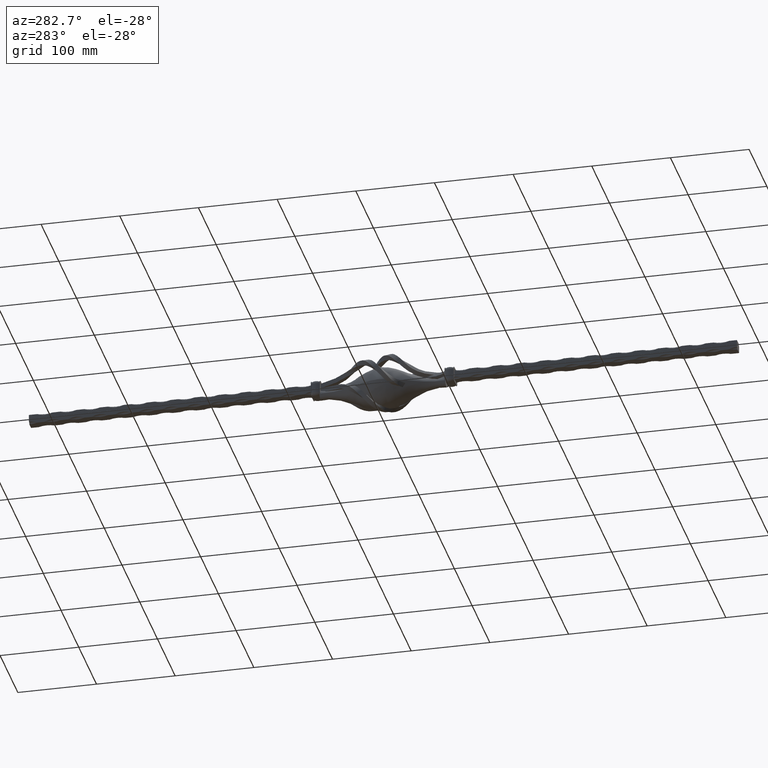
[diagram: clean part render]
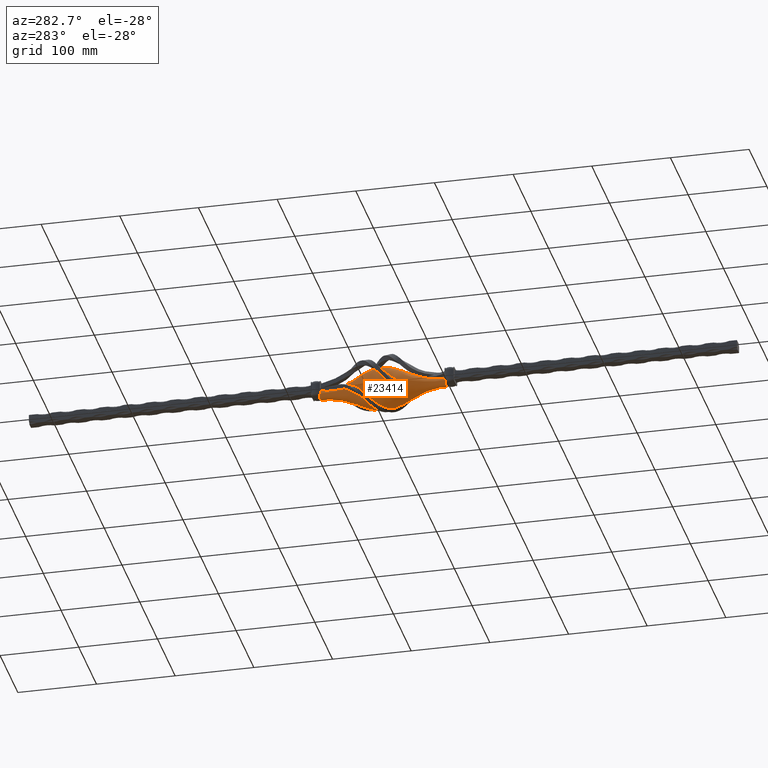
[diagram: same view with one face highlighted and labeled with its STEP entity id]
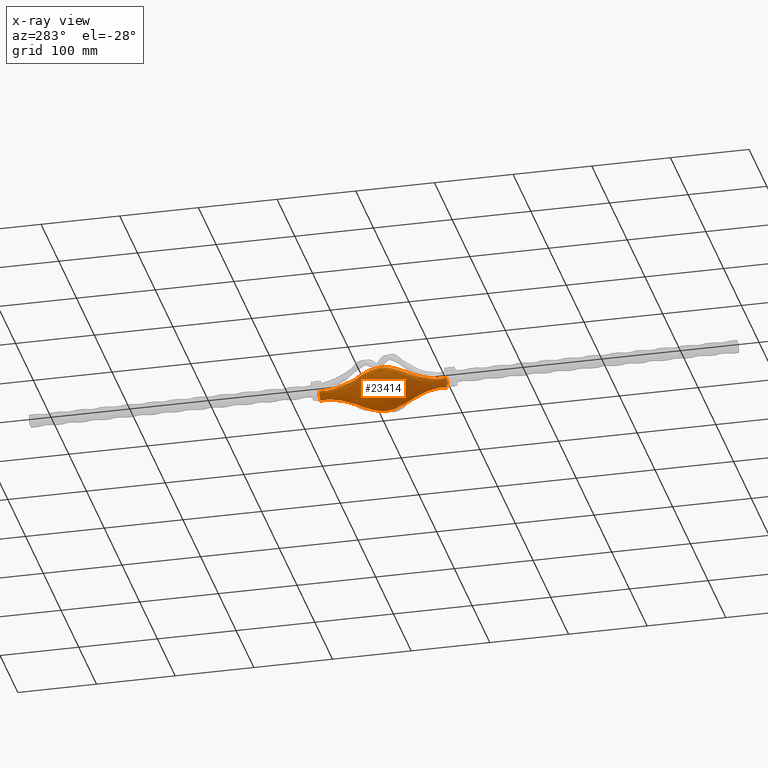
[diagram: x-ray of the same camera — body ghosted, the highlighted face saturated]
A machine part, auxiliary view. The second image highlights one B-rep face of the part: STEP entity #23414.
The next image is the same camera in x-ray: the body ghosted, the highlighted face saturated — about 0% of this face is hidden behind the body in this view.
In plain terms, the highlighted face is a freeform B-spline surface patch.
Its self-contained STEP definition (entity closure, byte-faithful):
#453 = CARTESIAN_POINT ( 'NONE',  ( -5.999999999999979572, -77.72863661392032952, 11.99999999999998934 ) ) ;
#548 = CARTESIAN_POINT ( 'NONE',  ( 47.70835784110015965, 0.03039723600734672848, -95.41671568220031929 ) ) ;
#644 = CARTESIAN_POINT ( 'NONE',  ( -6.000000000000000000, 79.99999999999998579, 11.99999999999993250 ) ) ;
#733 = CARTESIAN_POINT ( 'NONE',  ( -6.000000000000000000, 77.74750841200491891, 0.000000000000000000 ) ) ;
#1486 = ORIENTED_EDGE ( 'NONE', *, *, #5737, .F. ) ;
#2616 = CARTESIAN_POINT ( 'NONE',  ( 6.000000000000010658, -77.72863661392032952, 11.99999999999998934 ) ) ;
#2702 = CARTESIAN_POINT ( 'NONE',  ( -47.70835784110016675, 0.03039723600731751227, -95.41671568220031929 ) ) ;
#2793 = CARTESIAN_POINT ( 'NONE',  ( 4.531969984489585990, -45.04382807627427354, -9.063939968979161321 ) ) ;
#2887 = CARTESIAN_POINT ( 'NONE',  ( -6.000000000000000000, 77.74750841200493312, 11.99999999999993250 ) ) ;
#3354 = CARTESIAN_POINT ( 'NONE',  ( -5.999999999999980460, -77.72863661392031531, 0.000000000000000000 ) ) ;
#4313 = VERTEX_POINT ( 'NONE', #13582 ) ;
#4666 = VERTEX_POINT ( 'NONE', #9496 ) ;
#4799 = CARTESIAN_POINT ( 'NONE',  ( 6.000000000000010658, -77.72863661392032952, -11.99999999999998934 ) ) ;
#5026 = CARTESIAN_POINT ( 'NONE',  ( -5.999999999999979572, -79.99999999999998579, 11.99999999999999289 ) ) ;
#5079 = CARTESIAN_POINT ( 'NONE',  ( -4.531969984489599312, 44.97473145452062226, 0.000000000000000000 ) ) ;
#5562 = ORIENTED_EDGE ( 'NONE', *, *, #27181, .T. ) ;
#5737 = EDGE_CURVE ( 'NONE', #4666, #4666, #26709, .T. ) ;
#6136 = FACE_OUTER_BOUND ( 'NONE', #20476, .T. ) ;
#7084 = CARTESIAN_POINT ( 'NONE',  ( 47.70835784110015254, 0.03039723600734672501, 0.000000000000000000 ) ) ;
#7256 = CARTESIAN_POINT ( 'NONE',  ( -6.000000000000000000, 80.00000000000000000, 0.000000000000000000 ) ) ;
#8029 = AXIS2_PLACEMENT_3D ( 'NONE', #23460, #16780, #27819 ) ;
#8081 = CARTESIAN_POINT ( 'NONE',  ( 1.606015658684072100E-14, -80.00000000000000000, 0.000000000000000000 ) ) ;
#9179 = CARTESIAN_POINT ( 'NONE',  ( -5.999999999999980460, -79.99999999999998579, 0.000000000000000000 ) ) ;
#9275 = CARTESIAN_POINT ( 'NONE',  ( -6.000000000000000000, 77.74750841200493312, -11.99999999999993250 ) ) ;
#9370 = CARTESIAN_POINT ( 'NONE',  ( -4.531969984489599312, 44.97473145452062226, 0.000000000000000000 ) ) ;
#9461 = CARTESIAN_POINT ( 'NONE',  ( -4.531969984489599312, 44.97473145452062226, -9.063939968979154216 ) ) ;
#9496 = CARTESIAN_POINT ( 'NONE',  ( -6.000000000000000000, 80.00000000000000000, 0.000000000000000000 ) ) ;
#10084 = CARTESIAN_POINT ( 'NONE',  ( -5.999999999999979572, -79.99999999999998579, -11.99999999999999289 ) ) ;
#11363 = CARTESIAN_POINT ( 'NONE',  ( 4.531969984489554903, 44.97473145452062226, 0.000000000000000000 ) ) ;
#11640 = CARTESIAN_POINT ( 'NONE',  ( 5.999999999999936051, 77.74750841200493312, 11.99999999999993250 ) ) ;
#12241 = CARTESIAN_POINT ( 'NONE',  ( -5.999999999999980460, -79.99999999999998579, 0.000000000000000000 ) ) ;
#13458 = CARTESIAN_POINT ( 'NONE',  ( 4.531969984489555792, 44.97473145452062226, -9.063939968979155992 ) ) ;
#13549 = CARTESIAN_POINT ( 'NONE',  ( -47.70835784110016675, 0.03039723600731751227, 0.000000000000000000 ) ) ;
#13582 = CARTESIAN_POINT ( 'NONE',  ( -5.999999999999979572, -80.00000000000000000, 0.000000000000000000 ) ) ;
#13638 = CARTESIAN_POINT ( 'NONE',  ( -6.000000000000000000, 80.00000000000000000, 0.000000000000000000 ) ) ;
#13947 = FACE_OUTER_BOUND ( 'NONE', #16429, .T. ) ;
#14201 = CARTESIAN_POINT ( 'NONE',  ( -4.531969984489573555, -45.04382807627427354, -9.063939968979157769 ) ) ;
#15328 = CARTESIAN_POINT ( 'NONE',  ( 6.000000000000012434, -79.99999999999998579, -11.99999999999998934 ) ) ;
#15607 = CARTESIAN_POINT ( 'NONE',  ( 4.531969984489585990, -45.04382807627427354, 0.000000000000000000 ) ) ;
#15705 = CARTESIAN_POINT ( 'NONE',  ( 4.531969984489555792, 44.97473145452062226, 9.063939968979155992 ) ) ;
#15795 = CARTESIAN_POINT ( 'NONE',  ( 47.70835784110015965, 0.03039723600734672848, 95.41671568220031929 ) ) ;
#16365 = CARTESIAN_POINT ( 'NONE',  ( -6.000000000000000000, 77.74750841200491891, 0.000000000000000000 ) ) ;
#16429 = EDGE_LOOP ( 'NONE', ( #1486 ) ) ;
#16780 = DIRECTION ( 'NONE',  ( -3.061616997868382648E-16, 1.000000000000000000, -0.000000000000000000 ) ) ;
#16791 = DIRECTION ( 'NONE',  ( -3.061616997868382648E-16, 1.000000000000000000, -0.000000000000000000 ) ) ;
#17783 = CARTESIAN_POINT ( 'NONE',  ( 6.000000000000011546, -77.72863661392031531, 0.000000000000000000 ) ) ;
#17970 = CARTESIAN_POINT ( 'NONE',  ( -4.531969984489574443, -45.04382807627427354, 0.000000000000000000 ) ) ;
#19979 = CARTESIAN_POINT ( 'NONE',  ( -5.999999999999979572, -77.72863661392032952, -11.99999999999998934 ) ) ;
#20068 = CARTESIAN_POINT ( 'NONE',  ( 5.999999999999936051, 79.99999999999998579, -11.99999999999993250 ) ) ;
#20163 = CARTESIAN_POINT ( 'NONE',  ( -47.70835784110016675, 0.03039723600731751227, 0.000000000000000000 ) ) ;
#20258 = CARTESIAN_POINT ( 'NONE',  ( -47.70835784110016675, 0.03039723600731751227, 95.41671568220031929 ) ) ;
#20383 = CARTESIAN_POINT ( 'NONE',  ( 6.000000000000012434, -79.99999999999998579, 11.99999999999998934 ) ) ;
#20476 = EDGE_LOOP ( 'NONE', ( #5562 ) ) ;
#22195 = CARTESIAN_POINT ( 'NONE',  ( -5.999999999999980460, -77.72863661392031531, 0.000000000000000000 ) ) ;
#22289 = CARTESIAN_POINT ( 'NONE',  ( -4.531969984489599312, 44.97473145452062226, 9.063939968979154216 ) ) ;
#22389 = CARTESIAN_POINT ( 'NONE',  ( 5.999999999999936051, 77.74750841200491891, 0.000000000000000000 ) ) ;
#22478 = CARTESIAN_POINT ( 'NONE',  ( 4.531969984489585990, -45.04382807627427354, 9.063939968979161321 ) ) ;
#23381 = DIRECTION ( 'NONE',  ( -1.000000000000000000, 0.000000000000000000, 0.000000000000000000 ) ) ;
#23414 = ADVANCED_FACE ( 'NONE', ( #6136, #13947 ), #25877, .T. ) ;
#23460 = CARTESIAN_POINT ( 'NONE',  ( -3.292571537905340138E-14, 80.00000000000000000, 0.000000000000000000 ) ) ;
#23693 = CIRCLE ( 'NONE', #27663, 5.999999999999995559 ) ;
#24291 = CARTESIAN_POINT ( 'NONE',  ( -6.000000000000000000, 79.99999999999998579, -11.99999999999993250 ) ) ;
#24477 = CARTESIAN_POINT ( 'NONE',  ( -4.531969984489574443, -45.04382807627427354, 0.000000000000000000 ) ) ;
#24564 = CARTESIAN_POINT ( 'NONE',  ( 5.999999999999935163, 80.00000000000000000, 0.000000000000000000 ) ) ;
#24657 = CARTESIAN_POINT ( 'NONE',  ( 5.999999999999936051, 79.99999999999998579, 11.99999999999993250 ) ) ;
#25877 =( BOUNDED_SURFACE ( )  B_SPLINE_SURFACE ( 3, 3, ( 
 ( #7256, #644, #24657, #24564, #20068, #24291, #13638 ),
 ( #16365, #2887, #11640, #22389, #27199, #9275, #733 ),
 ( #5079, #22289, #15705, #11363, #13458, #9461, #9370 ),
 ( #13549, #20258, #15795, #7084, #548, #2702, #20163 ),
 ( #24477, #26644, #22478, #15607, #2793, #14201, #17970 ),
 ( #3354, #453, #2616, #17783, #4799, #19979, #22195 ),
 ( #9179, #5026, #20383, #25893, #15328, #10084, #12241 ) ),
 .UNSPECIFIED., .F., .T., .T. ) 
 B_SPLINE_SURFACE_WITH_KNOTS ( ( 4, 1, 1, 1, 4 ),
 ( 4, 3, 4 ),
 ( 0.000000000000000000, 0.06007637948371302716, 0.5000000000000000000, 0.9399236205162869728, 1.000000000000000000 ),
 ( 0.000000000000000000, 0.5000000000000000000, 1.000000000000000000 ),
 .UNSPECIFIED. ) 
 GEOMETRIC_REPRESENTATION_ITEM ( )  RATIONAL_B_SPLINE_SURFACE ( (
 ( 1.000000000000000000, 0.3333333333333333148, 0.3333333333333333148, 1.000000000000000000, 0.3333333333333333148, 0.3333333333333333148, 1.000000000000000000),
 ( 1.000000000000000000, 0.3333333333333333148, 0.3333333333333333148, 1.000000000000000000, 0.3333333333333333148, 0.3333333333333333148, 1.000000000000000000),
 ( 1.000000000000000000, 0.3333333333333333148, 0.3333333333333333148, 1.000000000000000000, 0.3333333333333333148, 0.3333333333333333148, 1.000000000000000000),
 ( 1.000000000000000000, 0.3333333333333333148, 0.3333333333333333148, 1.000000000000000000, 0.3333333333333333148, 0.3333333333333333148, 1.000000000000000000),
 ( 1.000000000000000000, 0.3333333333333333148, 0.3333333333333333148, 1.000000000000000000, 0.3333333333333333148, 0.3333333333333333148, 1.000000000000000000),
 ( 1.000000000000000000, 0.3333333333333333148, 0.3333333333333333148, 1.000000000000000000, 0.3333333333333333148, 0.3333333333333333148, 1.000000000000000000),
 ( 1.000000000000000000, 0.3333333333333333148, 0.3333333333333333148, 1.000000000000000000, 0.3333333333333333148, 0.3333333333333333148, 1.000000000000000000) ) ) 
 REPRESENTATION_ITEM ( '' )  SURFACE ( )  );
#25893 = CARTESIAN_POINT ( 'NONE',  ( 6.000000000000012434, -79.99999999999998579, 0.000000000000000000 ) ) ;
#26644 = CARTESIAN_POINT ( 'NONE',  ( -4.531969984489573555, -45.04382807627427354, 9.063939968979157769 ) ) ;
#26709 = CIRCLE ( 'NONE', #8029, 5.999999999999967137 ) ;
#27181 = EDGE_CURVE ( 'NONE', #4313, #4313, #23693, .T. ) ;
#27199 = CARTESIAN_POINT ( 'NONE',  ( 5.999999999999936051, 77.74750841200493312, -11.99999999999993250 ) ) ;
#27663 = AXIS2_PLACEMENT_3D ( 'NONE', #8081, #16791, #23381 ) ;
#27819 = DIRECTION ( 'NONE',  ( -1.000000000000000000, 0.000000000000000000, 0.000000000000000000 ) ) ;